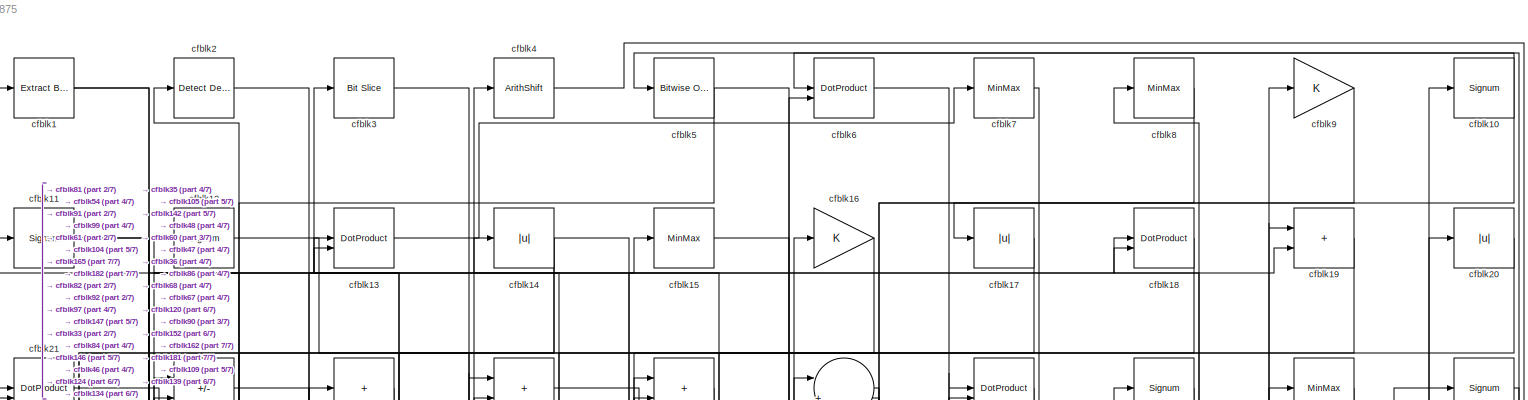
[diagram: root canvas - part 1/7, full width, top band]
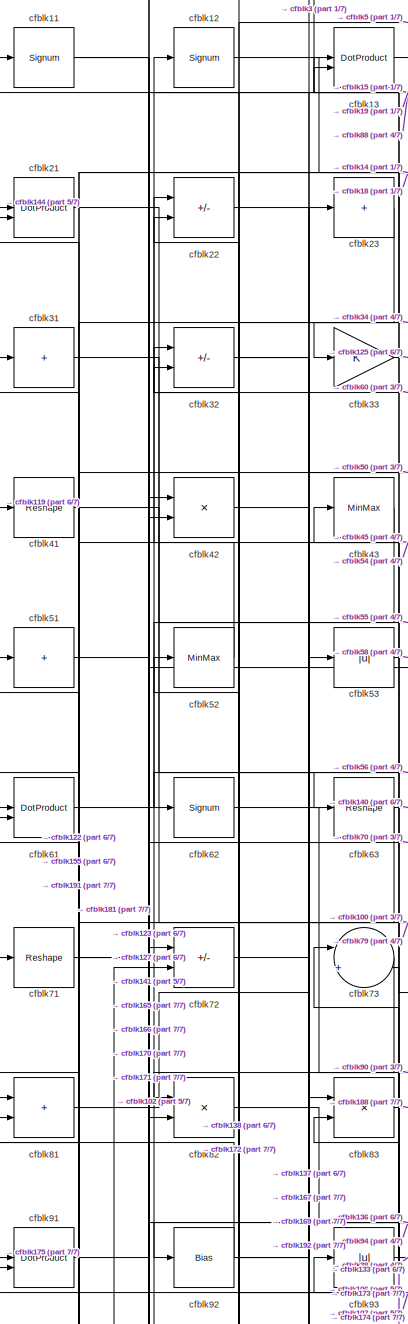
[diagram: root canvas - part 2/7, top left region]
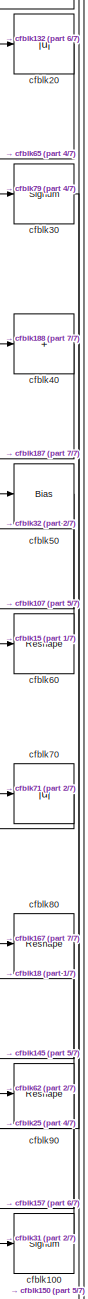
[diagram: root canvas - part 3/7, top right region]
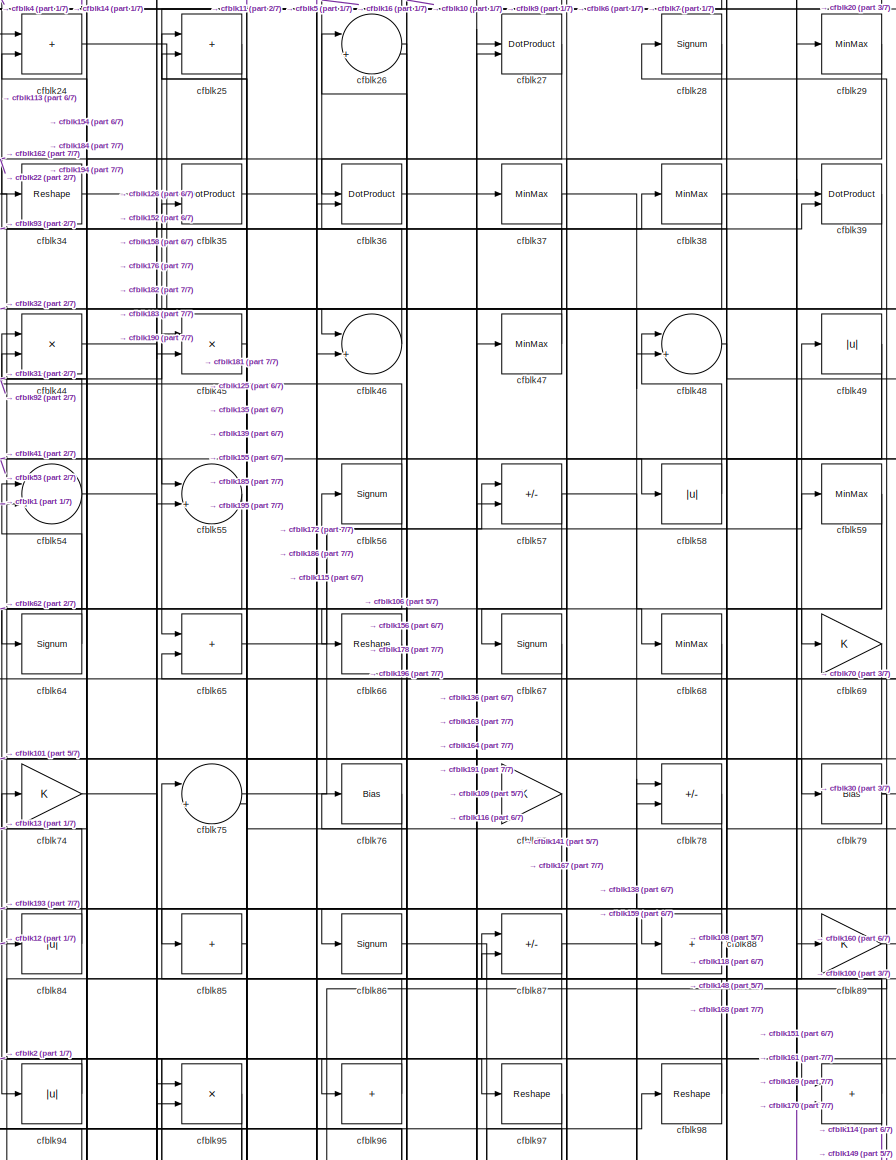
[diagram: root canvas - part 4/7, top center region]
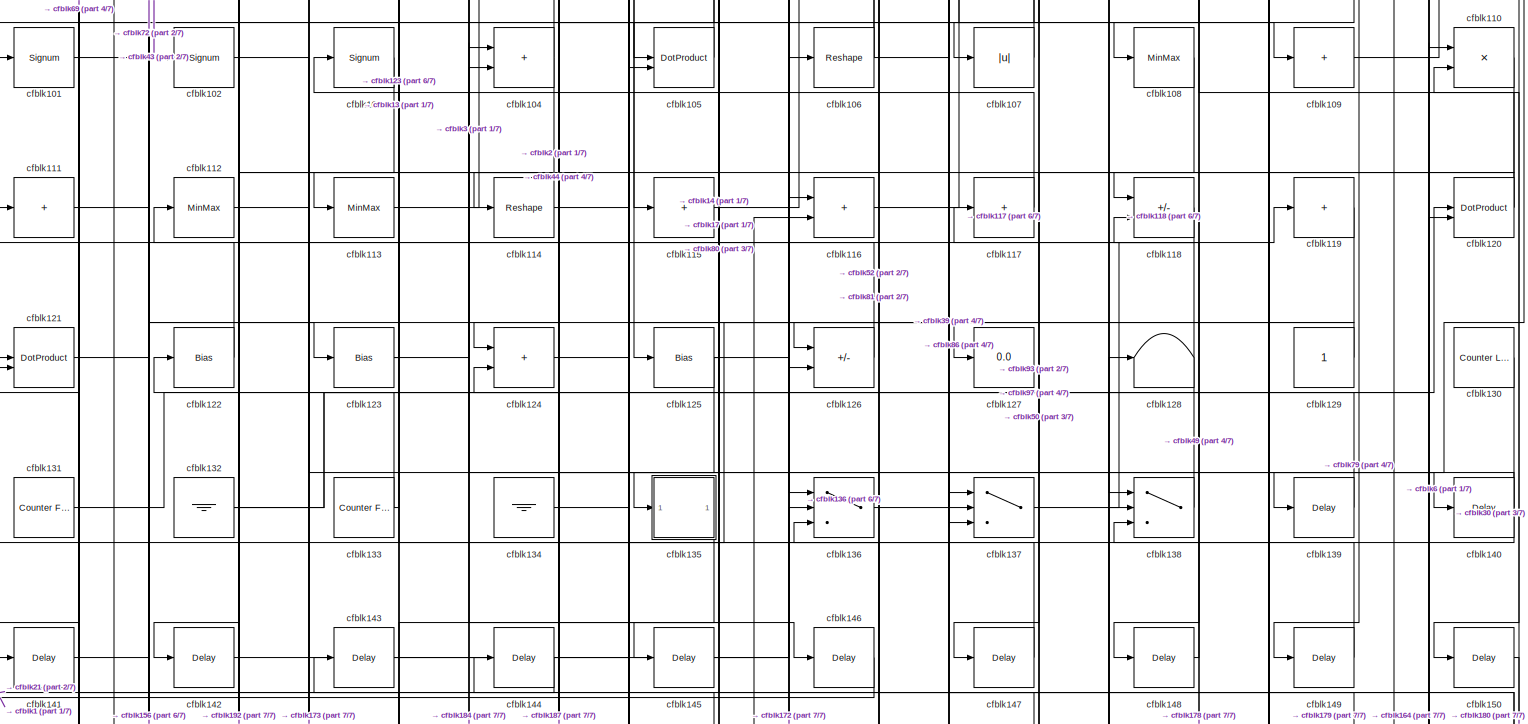
[diagram: root canvas - part 5/7, full width, middle band]
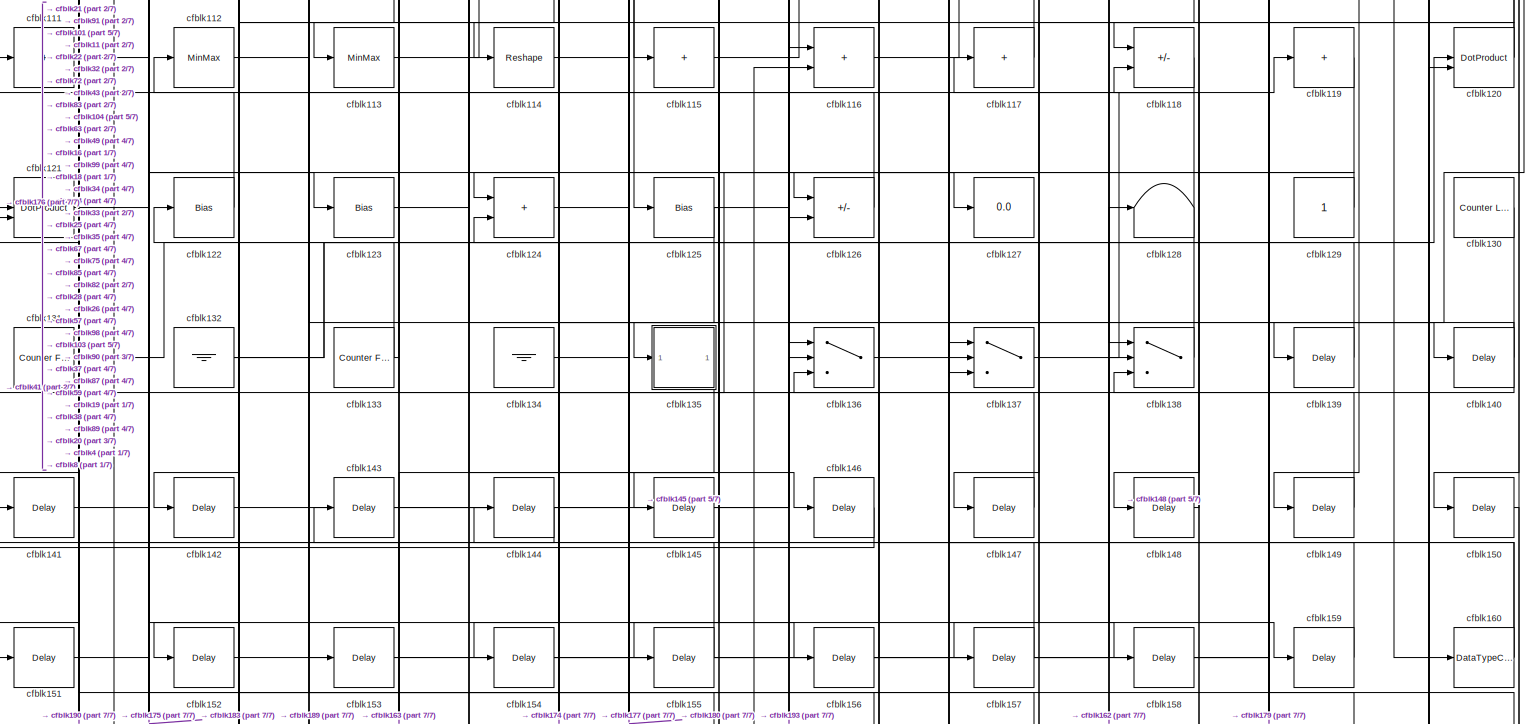
[diagram: root canvas - part 6/7, full width, bottom band]
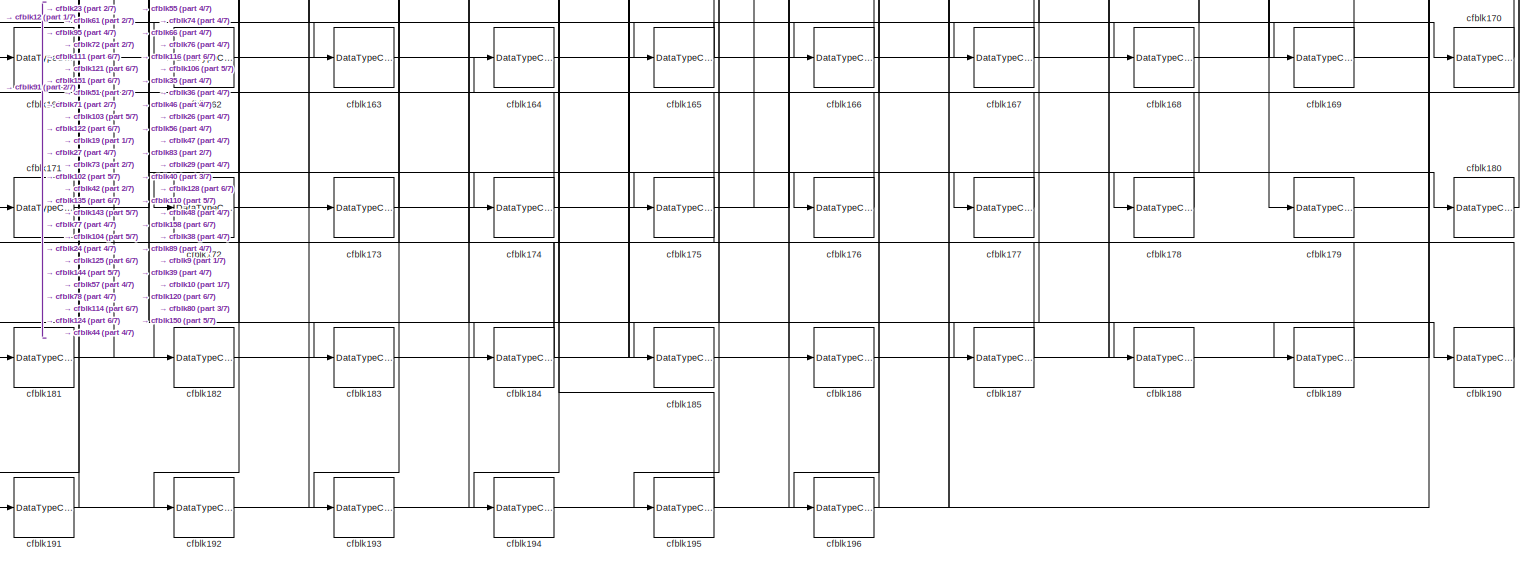
[diagram: root canvas - part 7/7, full width, bottom band]
MODEL slx_31e318410875
KIND model
CONFIG AbsTol = auto
CONFIG EnableMultiTasking = off
CONFIG FixedStep = auto
CONFIG MaxStep = auto
CONFIG MinStep = auto
CONFIG RelTol = 1e-3
CONFIG SampleTimeConstraint = Unconstrained
CONFIG SolverName = VariableStepAuto
CONFIG StartTime = 0.0
CONFIG StopTime = 10.0
BLOCK [Reference] cfblk1  REF=simulink/Logic and Bit
Operations/Extract Bits
  LibrarySourceBlock = hdlsllib/Logic and Bit\nOperations/Extract Bits
  SourceBlock = simulink/Logic and Bit\nOperations/Extract Bits
  SourceType = Extract Bits
BLOCK [Signum] cfblk10
BLOCK [Signum] cfblk100
BLOCK [Signum] cfblk101
BLOCK [Signum] cfblk102
BLOCK [Signum] cfblk103
BLOCK [Sum] cfblk104
  IconShape = rectangular
BLOCK [DotProduct] cfblk105
  OutDataTypeStr = Inherit: Inherit via internal rule
BLOCK [Reshape] cfblk106
BLOCK [Abs] cfblk107
  SaturateOnIntegerOverflow = off
BLOCK [MinMax] cfblk108
BLOCK [Sum] cfblk109
  IconShape = rectangular
  Inputs = +
BLOCK [Signum] cfblk11
BLOCK [Product] cfblk110
  Inputs = */
  RndMeth = Zero
  SaturateOnIntegerOverflow = on
BLOCK [Sum] cfblk111
  IconShape = rectangular
  Inputs = +
BLOCK [MinMax] cfblk112
BLOCK [MinMax] cfblk113
BLOCK [Reshape] cfblk114
BLOCK [Sum] cfblk115
  IconShape = rectangular
  Inputs = +
BLOCK [Sum] cfblk116
  IconShape = rectangular
BLOCK [Sum] cfblk117
  IconShape = rectangular
  Inputs = +
BLOCK [Sum] cfblk118
  IconShape = rectangular
  Inputs = +-
BLOCK [Sum] cfblk119
  IconShape = rectangular
  Inputs = +
BLOCK [Signum] cfblk12
BLOCK [DotProduct] cfblk120
  OutDataTypeStr = Inherit: Inherit via internal rule
BLOCK [DotProduct] cfblk121
  OutDataTypeStr = Inherit: Inherit via internal rule
BLOCK [Bias] cfblk122
  Bias = 0.0
  SaturateOnIntegerOverflow = off
BLOCK [Bias] cfblk123
  Bias = 0.0
  SaturateOnIntegerOverflow = off
BLOCK [Sum] cfblk124
  IconShape = rectangular
BLOCK [Bias] cfblk125
  Bias = 0.0
  SaturateOnIntegerOverflow = off
BLOCK [Sum] cfblk126
  IconShape = rectangular
  Inputs = +-
BLOCK [Display] cfblk127
  Decimation = 1
BLOCK [Terminator] cfblk128
BLOCK [Constant] cfblk129
  SampleTime = -1
BLOCK [DotProduct] cfblk13
  OutDataTypeStr = Inherit: Inherit via internal rule
BLOCK [Reference] cfblk130  REF=hdlsllib/Sources/Counter
Limited
  SourceBlock = hdlsllib/Sources/Counter\nLimited
  SourceType = Counter Limited
BLOCK [Reference] cfblk131  REF=hdlsllib/Sources/Counter
Free-Running
  SourceBlock = hdlsllib/Sources/Counter\nFree-Running
  SourceType = Counter Free-Running
BLOCK [Ground] cfblk132
BLOCK [Reference] cfblk133  REF=hdlsllib/Sources/Counter
Free-Running
  SourceBlock = hdlsllib/Sources/Counter\nFree-Running
  SourceType = Counter Free-Running
BLOCK [Ground] cfblk134
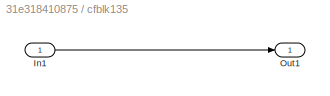
BLOCK [SubSystem] cfblk135
  LibrarySourceBlock = hdlsllib/Ports &\nSubsystems/Subsystem
BLOCK [Inport] cfblk135/In1
BLOCK [Outport] cfblk135/Out1
BLOCK [Switch] cfblk136
  InputSameDT = off
  SaturateOnIntegerOverflow = off
BLOCK [Switch] cfblk137
  InputSameDT = off
  SaturateOnIntegerOverflow = off
BLOCK [Switch] cfblk138
  InputSameDT = off
  SaturateOnIntegerOverflow = off
BLOCK [Delay] cfblk139
  InputPortMap = u0
  SampleTime = 1
BLOCK [Abs] cfblk14
  SaturateOnIntegerOverflow = off
BLOCK [Delay] cfblk140
  InputPortMap = u0
  SampleTime = 1
BLOCK [Delay] cfblk141
  InputPortMap = u0
  SampleTime = 1
BLOCK [Delay] cfblk142
  InputPortMap = u0
  SampleTime = 1
BLOCK [Delay] cfblk143
  InputPortMap = u0
  SampleTime = 1
BLOCK [Delay] cfblk144
  InputPortMap = u0
  SampleTime = 1
BLOCK [Delay] cfblk145
  InputPortMap = u0
  SampleTime = 1
BLOCK [Delay] cfblk146
  InputPortMap = u0
  SampleTime = 1
BLOCK [Delay] cfblk147
  InputPortMap = u0
  SampleTime = 1
BLOCK [Delay] cfblk148
  InputPortMap = u0
  SampleTime = 1
BLOCK [Delay] cfblk149
  InputPortMap = u0
  SampleTime = 1
BLOCK [MinMax] cfblk15
BLOCK [Delay] cfblk150
  InputPortMap = u0
  SampleTime = 1
BLOCK [Delay] cfblk151
  InputPortMap = u0
  SampleTime = 1
BLOCK [Delay] cfblk152
  InputPortMap = u0
  SampleTime = 1
BLOCK [Delay] cfblk153
  InputPortMap = u0
  SampleTime = 1
BLOCK [Delay] cfblk154
  InputPortMap = u0
  SampleTime = 1
BLOCK [Delay] cfblk155
  InputPortMap = u0
  SampleTime = 1
BLOCK [Delay] cfblk156
  InputPortMap = u0
  SampleTime = 1
BLOCK [Delay] cfblk157
  InputPortMap = u0
  SampleTime = 1
BLOCK [Delay] cfblk158
  InputPortMap = u0
  SampleTime = 1
BLOCK [Delay] cfblk159
  InputPortMap = u0
  SampleTime = 1
BLOCK [Gain] cfblk16
BLOCK [DataTypeConversion] cfblk160
  RndMeth = Floor
  SaturateOnIntegerOverflow = off
BLOCK [DataTypeConversion] cfblk161
  OutDataTypeStr = uint8
  RndMeth = Floor
  SaturateOnIntegerOverflow = off
BLOCK [DataTypeConversion] cfblk162
  RndMeth = Floor
  SaturateOnIntegerOverflow = off
BLOCK [DataTypeConversion] cfblk163
  OutDataTypeStr = uint8
  RndMeth = Floor
  SaturateOnIntegerOverflow = off
BLOCK [DataTypeConversion] cfblk164
  OutDataTypeStr = uint8
  RndMeth = Floor
  SaturateOnIntegerOverflow = off
BLOCK [DataTypeConversion] cfblk165
  RndMeth = Floor
  SaturateOnIntegerOverflow = off
BLOCK [DataTypeConversion] cfblk166
  OutDataTypeStr = uint8
  RndMeth = Floor
  SaturateOnIntegerOverflow = off
BLOCK [DataTypeConversion] cfblk167
  RndMeth = Floor
  SaturateOnIntegerOverflow = off
BLOCK [DataTypeConversion] cfblk168
  OutDataTypeStr = uint8
  RndMeth = Floor
  SaturateOnIntegerOverflow = off
BLOCK [DataTypeConversion] cfblk169
  OutDataTypeStr = uint8
  RndMeth = Floor
  SaturateOnIntegerOverflow = off
BLOCK [Abs] cfblk17
  SaturateOnIntegerOverflow = off
BLOCK [DataTypeConversion] cfblk170
  OutDataTypeStr = uint8
  RndMeth = Floor
  SaturateOnIntegerOverflow = off
BLOCK [DataTypeConversion] cfblk171
  OutDataTypeStr = uint8
  RndMeth = Floor
  SaturateOnIntegerOverflow = off
BLOCK [DataTypeConversion] cfblk172
  RndMeth = Floor
  SaturateOnIntegerOverflow = off
BLOCK [DataTypeConversion] cfblk173
  OutDataTypeStr = uint8
  RndMeth = Floor
  SaturateOnIntegerOverflow = off
BLOCK [DataTypeConversion] cfblk174
  OutDataTypeStr = uint8
  RndMeth = Floor
  SaturateOnIntegerOverflow = off
BLOCK [DataTypeConversion] cfblk175
  RndMeth = Floor
  SaturateOnIntegerOverflow = off
BLOCK [DataTypeConversion] cfblk176
  OutDataTypeStr = uint8
  RndMeth = Floor
  SaturateOnIntegerOverflow = off
BLOCK [DataTypeConversion] cfblk177
  OutDataTypeStr = uint8
  RndMeth = Floor
  SaturateOnIntegerOverflow = off
BLOCK [DataTypeConversion] cfblk178
  OutDataTypeStr = uint8
  RndMeth = Floor
  SaturateOnIntegerOverflow = off
BLOCK [DataTypeConversion] cfblk179
  OutDataTypeStr = uint8
  RndMeth = Floor
  SaturateOnIntegerOverflow = off
BLOCK [DotProduct] cfblk18
  OutDataTypeStr = Inherit: Inherit via internal rule
BLOCK [DataTypeConversion] cfblk180
  OutDataTypeStr = uint8
  RndMeth = Floor
  SaturateOnIntegerOverflow = off
BLOCK [DataTypeConversion] cfblk181
  RndMeth = Floor
  SaturateOnIntegerOverflow = off
BLOCK [DataTypeConversion] cfblk182
  OutDataTypeStr = uint8
  RndMeth = Floor
  SaturateOnIntegerOverflow = off
BLOCK [DataTypeConversion] cfblk183
  OutDataTypeStr = uint8
  RndMeth = Floor
  SaturateOnIntegerOverflow = off
BLOCK [DataTypeConversion] cfblk184
  RndMeth = Floor
  SaturateOnIntegerOverflow = off
BLOCK [DataTypeConversion] cfblk185
  OutDataTypeStr = uint8
  RndMeth = Floor
  SaturateOnIntegerOverflow = off
BLOCK [DataTypeConversion] cfblk186
  OutDataTypeStr = uint8
  RndMeth = Floor
  SaturateOnIntegerOverflow = off
BLOCK [DataTypeConversion] cfblk187
  OutDataTypeStr = uint8
  RndMeth = Floor
  SaturateOnIntegerOverflow = off
BLOCK [DataTypeConversion] cfblk188
  OutDataTypeStr = uint8
  RndMeth = Floor
  SaturateOnIntegerOverflow = off
BLOCK [DataTypeConversion] cfblk189
  OutDataTypeStr = uint8
  RndMeth = Floor
  SaturateOnIntegerOverflow = off
BLOCK [Sum] cfblk19
  IconShape = rectangular
BLOCK [DataTypeConversion] cfblk190
  OutDataTypeStr = uint8
  RndMeth = Floor
  SaturateOnIntegerOverflow = off
BLOCK [DataTypeConversion] cfblk191
  RndMeth = Floor
  SaturateOnIntegerOverflow = off
BLOCK [DataTypeConversion] cfblk192
  OutDataTypeStr = uint8
  RndMeth = Floor
  SaturateOnIntegerOverflow = off
BLOCK [DataTypeConversion] cfblk193
  RndMeth = Floor
  SaturateOnIntegerOverflow = off
BLOCK [DataTypeConversion] cfblk194
  OutDataTypeStr = uint8
  RndMeth = Floor
  SaturateOnIntegerOverflow = off
BLOCK [DataTypeConversion] cfblk195
  OutDataTypeStr = uint8
  RndMeth = Floor
  SaturateOnIntegerOverflow = off
BLOCK [DataTypeConversion] cfblk196
  OutDataTypeStr = uint8
  RndMeth = Floor
  SaturateOnIntegerOverflow = off
BLOCK [Reference] cfblk2  REF=simulink/Logic and Bit
Operations/Detect
Decrease
  LibrarySourceBlock = hdlsllib/Logic and Bit\nOperations/Detect\nDecrease
  SourceBlock = simulink/Logic and Bit\nOperations/Detect\nDecrease
  SourceType = Detect Decrease
BLOCK [Abs] cfblk20
  SaturateOnIntegerOverflow = off
BLOCK [DotProduct] cfblk21
  OutDataTypeStr = Inherit: Inherit via internal rule
BLOCK [Sum] cfblk22
  IconShape = rectangular
  Inputs = +-
BLOCK [Sum] cfblk23
  IconShape = rectangular
  Inputs = +
BLOCK [Sum] cfblk24
  IconShape = rectangular
BLOCK [Sum] cfblk25
  IconShape = rectangular
BLOCK [Sum] cfblk26
  Inputs = |++
BLOCK [DotProduct] cfblk27
  OutDataTypeStr = Inherit: Inherit via internal rule
BLOCK [Signum] cfblk28
BLOCK [MinMax] cfblk29
BLOCK [Reference] cfblk3  REF=hdlsllib/Logic and Bit
Operations/Bit Slice
  SourceBlock = hdlsllib/Logic and Bit\nOperations/Bit Slice
  SourceType = Bit Slice
BLOCK [Signum] cfblk30
BLOCK [Sum] cfblk31
  IconShape = rectangular
  Inputs = +
BLOCK [Sum] cfblk32
  IconShape = rectangular
  Inputs = +-
BLOCK [Gain] cfblk33
BLOCK [Reshape] cfblk34
BLOCK [DotProduct] cfblk35
  OutDataTypeStr = Inherit: Inherit via internal rule
BLOCK [DotProduct] cfblk36
  OutDataTypeStr = Inherit: Inherit via internal rule
BLOCK [MinMax] cfblk37
BLOCK [MinMax] cfblk38
BLOCK [DotProduct] cfblk39
  OutDataTypeStr = Inherit: Inherit via internal rule
BLOCK [ArithShift] cfblk4
  BitShiftNumber = 8
  InputPortMap = u0
BLOCK [Sum] cfblk40
  IconShape = rectangular
  Inputs = +
BLOCK [Reshape] cfblk41
BLOCK [Product] cfblk42
  Inputs = */
  RndMeth = Zero
  SaturateOnIntegerOverflow = on
BLOCK [MinMax] cfblk43
BLOCK [Product] cfblk44
  Inputs = */
  RndMeth = Zero
  SaturateOnIntegerOverflow = on
BLOCK [Product] cfblk45
  Inputs = */
  RndMeth = Zero
  SaturateOnIntegerOverflow = on
BLOCK [Sum] cfblk46
  Inputs = |++
BLOCK [MinMax] cfblk47
BLOCK [Sum] cfblk48
  Inputs = |++
BLOCK [Abs] cfblk49
  SaturateOnIntegerOverflow = off
BLOCK [Reference] cfblk5  REF=simulink/Logic and Bit
Operations/Bitwise
Operator
  LibrarySourceBlock = hdlsllib/Logic and Bit\nOperations/Bitwise\nOperator
  SourceBlock = simulink/Logic and Bit\nOperations/Bitwise\nOperator
  SourceType = Bitwise Operator
BLOCK [Bias] cfblk50
  Bias = 0.0
  SaturateOnIntegerOverflow = off
BLOCK [Sum] cfblk51
  IconShape = rectangular
  Inputs = +
BLOCK [MinMax] cfblk52
BLOCK [Abs] cfblk53
  SaturateOnIntegerOverflow = off
BLOCK [Sum] cfblk54
  Inputs = |++
BLOCK [Sum] cfblk55
  Inputs = |++
BLOCK [Signum] cfblk56
BLOCK [Sum] cfblk57
  IconShape = rectangular
  Inputs = +-
BLOCK [Abs] cfblk58
  SaturateOnIntegerOverflow = off
BLOCK [MinMax] cfblk59
BLOCK [DotProduct] cfblk6
  OutDataTypeStr = Inherit: Inherit via internal rule
BLOCK [Reshape] cfblk60
BLOCK [DotProduct] cfblk61
  OutDataTypeStr = Inherit: Inherit via internal rule
BLOCK [Signum] cfblk62
BLOCK [Reshape] cfblk63
BLOCK [Signum] cfblk64
BLOCK [Sum] cfblk65
  IconShape = rectangular
BLOCK [Reshape] cfblk66
BLOCK [Signum] cfblk67
BLOCK [MinMax] cfblk68
BLOCK [Gain] cfblk69
BLOCK [MinMax] cfblk7
BLOCK [Abs] cfblk70
  SaturateOnIntegerOverflow = off
BLOCK [Reshape] cfblk71
BLOCK [Sum] cfblk72
  IconShape = rectangular
  Inputs = +-
BLOCK [Sum] cfblk73
  Inputs = |++
BLOCK [Gain] cfblk74
BLOCK [Sum] cfblk75
  Inputs = |++
BLOCK [Bias] cfblk76
  Bias = 0.0
  SaturateOnIntegerOverflow = off
BLOCK [Gain] cfblk77
BLOCK [Sum] cfblk78
  IconShape = rectangular
  Inputs = +-
BLOCK [Bias] cfblk79
  Bias = 0.0
  SaturateOnIntegerOverflow = off
BLOCK [MinMax] cfblk8
BLOCK [Reshape] cfblk80
BLOCK [Sum] cfblk81
  IconShape = rectangular
BLOCK [Product] cfblk82
  Inputs = */
  RndMeth = Zero
  SaturateOnIntegerOverflow = on
BLOCK [Product] cfblk83
  Inputs = */
  RndMeth = Zero
  SaturateOnIntegerOverflow = on
BLOCK [Abs] cfblk84
  SaturateOnIntegerOverflow = off
BLOCK [Sum] cfblk85
  IconShape = rectangular
  Inputs = +
BLOCK [Signum] cfblk86
BLOCK [Sum] cfblk87
  IconShape = rectangular
  Inputs = +-
BLOCK [Sum] cfblk88
  IconShape = rectangular
  Inputs = +
BLOCK [Gain] cfblk89
BLOCK [Gain] cfblk9
BLOCK [Reshape] cfblk90
BLOCK [DotProduct] cfblk91
  OutDataTypeStr = Inherit: Inherit via internal rule
BLOCK [Bias] cfblk92
  Bias = 0.0
  SaturateOnIntegerOverflow = off
BLOCK [Abs] cfblk93
  SaturateOnIntegerOverflow = off
BLOCK [Abs] cfblk94
  SaturateOnIntegerOverflow = off
BLOCK [Product] cfblk95
  Inputs = */
  RndMeth = Zero
  SaturateOnIntegerOverflow = on
BLOCK [Sum] cfblk96
  IconShape = rectangular
  Inputs = +
BLOCK [Reshape] cfblk97
BLOCK [Reshape] cfblk98
BLOCK [Sum] cfblk99
  IconShape = rectangular
LINE cfblk100:1 -> cfblk25:2
LINE cfblk101:1 -> cfblk156:1
LINE cfblk102:1 -> cfblk173:1
LINE cfblk103:1 -> cfblk192:1
NET cfblk104:1 -> cfblk142:1, cfblk2:1
LINE cfblk105:1 -> cfblk14:1
NET cfblk106:1 -> cfblk39:2, cfblk52:1, cfblk81:2
LINE cfblk107:1 -> cfblk93:1
LINE cfblk108:1 -> cfblk147:1
LINE cfblk109:1 -> cfblk6:1
NET cfblk10:1 -> cfblk36:1, cfblk5:1
LINE cfblk110:1 -> cfblk178:1
LINE cfblk111:1 -> cfblk189:1
LINE cfblk112:1 -> cfblk153:1
LINE cfblk113:1 -> cfblk49:1
LINE cfblk114:1 -> cfblk177:1
LINE cfblk115:1 -> cfblk28:1
LINE cfblk116:1 -> cfblk98:1
LINE cfblk117:1 -> cfblk103:1
LINE cfblk118:1 -> cfblk117:1
LINE cfblk119:1 -> cfblk41:1
NET cfblk11:1 -> cfblk123:1, cfblk127:1
NET cfblk120:1 -> cfblk113:1, cfblk8:1
LINE cfblk121:1 -> cfblk175:1
LINE cfblk122:1 -> cfblk21:2
NET cfblk123:1 -> cfblk104:2, cfblk83:2
LINE cfblk124:1 -> cfblk180:1
NET cfblk125:1 -> cfblk174:1, cfblk25:1, cfblk87:1
LINE cfblk126:1 -> cfblk112:1
LINE cfblk129:1 -> cfblk126:1
LINE cfblk12:1 -> cfblk84:1
LINE cfblk130:1 -> cfblk138:3
LINE cfblk131:1 -> cfblk120:1
NET cfblk132:1 -> cfblk116:1, cfblk20:1
NET cfblk133:1 -> cfblk22:2, cfblk43:1
LINE cfblk134:1 -> cfblk18:1
LINE cfblk135/In1:1 -> cfblk135/Out1:1
LINE cfblk135:1 -> cfblk163:1
LINE cfblk136:1 -> cfblk57:2
LINE cfblk137:1 -> cfblk119:1
LINE cfblk138:1 -> cfblk32:2
LINE cfblk139:1 -> cfblk75:2
LINE cfblk13:1 -> cfblk7:1
LINE cfblk140:1 -> cfblk137:2
LINE cfblk141:1 -> cfblk72:1
LINE cfblk142:1 -> cfblk6:2
LINE cfblk143:1 -> cfblk105:2
LINE cfblk144:1 -> cfblk21:1
LINE cfblk145:1 -> cfblk136:2
LINE cfblk146:1 -> cfblk1:1
LINE cfblk147:1 -> cfblk13:2
LINE cfblk148:1 -> cfblk118:2
LINE cfblk149:1 -> cfblk44:2
NET cfblk14:1 -> cfblk35:1, cfblk61:1, cfblk81:1
LINE cfblk150:1 -> cfblk164:1
LINE cfblk151:1 -> cfblk183:1
LINE cfblk152:1 -> cfblk19:1
LINE cfblk153:1 -> cfblk138:2
LINE cfblk154:1 -> cfblk99:2
LINE cfblk155:1 -> cfblk91:2
LINE cfblk156:1 -> cfblk26:1
LINE cfblk157:1 -> cfblk137:1
LINE cfblk158:1 -> cfblk179:1
LINE cfblk159:1 -> cfblk124:2
LINE cfblk15:1 -> cfblk60:1
NET cfblk160:1 -> cfblk136:3, cfblk35:2
LINE cfblk161:1 -> cfblk89:1
NET cfblk162:1 -> cfblk128:1, cfblk9:1
LINE cfblk163:1 -> cfblk27:1
LINE cfblk164:1 -> cfblk27:2
NET cfblk165:1 -> cfblk12:1, cfblk161:1
LINE cfblk166:1 -> cfblk51:1
NET cfblk167:1 -> cfblk80:1, cfblk83:1
LINE cfblk168:1 -> cfblk29:1
LINE cfblk169:1 -> cfblk39:1
LINE cfblk16:1 -> cfblk124:1
LINE cfblk170:1 -> cfblk42:1
LINE cfblk171:1 -> cfblk42:2
NET cfblk172:1 -> cfblk106:1, cfblk46:2
LINE cfblk173:1 -> cfblk73:1
LINE cfblk174:1 -> cfblk73:2
NET cfblk175:1 -> cfblk116:2, cfblk171:1, cfblk91:1
LINE cfblk176:1 -> cfblk121:1
LINE cfblk177:1 -> cfblk121:2
LINE cfblk178:1 -> cfblk56:1
LINE cfblk179:1 -> cfblk110:1
LINE cfblk17:1 -> cfblk105:1
LINE cfblk180:1 -> cfblk110:2
NET cfblk181:1 -> cfblk10:1, cfblk55:2, cfblk72:2
LINE cfblk182:1 -> cfblk95:1
LINE cfblk183:1 -> cfblk95:2
NET cfblk184:1 -> cfblk104:1, cfblk143:1
LINE cfblk185:1 -> cfblk78:1
LINE cfblk186:1 -> cfblk78:2
LINE cfblk187:1 -> cfblk144:1
LINE cfblk188:1 -> cfblk40:1
LINE cfblk189:1 -> cfblk122:1
LINE cfblk18:1 -> cfblk33:1
LINE cfblk190:1 -> cfblk111:1
NET cfblk191:1 -> cfblk24:1, cfblk47:1, cfblk61:2
LINE cfblk192:1 -> cfblk23:1
NET cfblk193:1 -> cfblk120:2, cfblk36:2
LINE cfblk194:1 -> cfblk77:1
LINE cfblk195:1 -> cfblk74:1
LINE cfblk196:1 -> cfblk76:1
LINE cfblk19:1 -> cfblk182:1
NET cfblk1:1 -> cfblk54:2, cfblk99:1
LINE cfblk20:1 -> cfblk65:1
LINE cfblk21:1 -> cfblk63:1
LINE cfblk22:1 -> cfblk34:1
LINE cfblk23:1 -> cfblk191:1
LINE cfblk24:1 -> cfblk46:1
LINE cfblk25:1 -> cfblk154:1
LINE cfblk26:1 -> cfblk196:1
LINE cfblk27:1 -> cfblk162:1
LINE cfblk28:1 -> cfblk66:1
LINE cfblk29:1 -> cfblk167:1
LINE cfblk2:1 -> cfblk97:1
LINE cfblk30:1 -> cfblk150:1
LINE cfblk31:1 -> cfblk100:1
NET cfblk32:1 -> cfblk50:1, cfblk79:1
LINE cfblk33:1 -> cfblk125:1
LINE cfblk34:1 -> cfblk158:1
LINE cfblk35:1 -> cfblk186:1
LINE cfblk36:1 -> cfblk37:1
NET cfblk37:1 -> cfblk138:1, cfblk45:2
NET cfblk38:1 -> cfblk151:1, cfblk170:1
LINE cfblk39:1 -> cfblk64:1
LINE cfblk3:1 -> cfblk146:1
LINE cfblk40:1 -> cfblk187:1
LINE cfblk41:1 -> cfblk55:1
LINE cfblk42:1 -> cfblk169:1
LINE cfblk43:1 -> cfblk102:1
LINE cfblk44:1 -> cfblk190:1
LINE cfblk45:1 -> cfblk85:1
LINE cfblk46:1 -> cfblk4:1
LINE cfblk47:1 -> cfblk16:1
LINE cfblk48:1 -> cfblk168:1
NET cfblk49:1 -> cfblk108:1, cfblk148:1
LINE cfblk4:1 -> cfblk139:1
LINE cfblk50:1 -> cfblk107:1
LINE cfblk51:1 -> cfblk165:1
LINE cfblk52:1 -> cfblk22:1
LINE cfblk53:1 -> cfblk58:1
NET cfblk54:1 -> cfblk126:2, cfblk152:1, cfblk31:1
LINE cfblk55:1 -> cfblk94:1
NET cfblk56:1 -> cfblk44:1, cfblk62:1
NET cfblk57:1 -> cfblk194:1, cfblk69:1
LINE cfblk58:1 -> cfblk48:1
NET cfblk59:1 -> cfblk118:1, cfblk88:1
NET cfblk5:1 -> cfblk48:2, cfblk82:1
LINE cfblk60:1 -> cfblk32:1
LINE cfblk61:1 -> cfblk3:1
LINE cfblk62:1 -> cfblk90:1
NET cfblk63:1 -> cfblk140:1, cfblk82:2
LINE cfblk64:1 -> cfblk54:1
LINE cfblk65:1 -> cfblk57:1
LINE cfblk66:1 -> cfblk185:1
LINE cfblk67:1 -> cfblk135:1
LINE cfblk68:1 -> cfblk96:1
LINE cfblk69:1 -> cfblk101:1
LINE cfblk6:1 -> cfblk68:1
LINE cfblk70:1 -> cfblk65:2
NET cfblk71:1 -> cfblk166:1, cfblk70:1
LINE cfblk72:1 -> cfblk137:3
LINE cfblk73:1 -> cfblk172:1
LINE cfblk74:1 -> cfblk176:1
LINE cfblk75:1 -> cfblk59:1
LINE cfblk76:1 -> cfblk195:1
LINE cfblk77:1 -> cfblk193:1
LINE cfblk78:1 -> cfblk184:1
NET cfblk79:1 -> cfblk149:1, cfblk30:1
LINE cfblk7:1 -> cfblk67:1
LINE cfblk80:1 -> cfblk145:1
LINE cfblk81:1 -> cfblk53:1
LINE cfblk82:1 -> cfblk136:1
LINE cfblk83:1 -> cfblk188:1
LINE cfblk84:1 -> cfblk13:1
LINE cfblk85:1 -> cfblk155:1
LINE cfblk86:1 -> cfblk109:1
NET cfblk87:1 -> cfblk115:1, cfblk159:1
LINE cfblk88:1 -> cfblk11:1
LINE cfblk89:1 -> cfblk160:1
LINE cfblk8:1 -> cfblk17:1
NET cfblk90:1 -> cfblk157:1, cfblk18:2
LINE cfblk91:1 -> cfblk19:2
NET cfblk92:1 -> cfblk15:1, cfblk45:1, cfblk71:1
LINE cfblk93:1 -> cfblk38:1
LINE cfblk94:1 -> cfblk92:1
LINE cfblk95:1 -> cfblk181:1
LINE cfblk96:1 -> cfblk75:1
LINE cfblk97:1 -> cfblk141:1
LINE cfblk98:1 -> cfblk24:2
NET cfblk99:1 -> cfblk114:1, cfblk26:2, cfblk87:2
LINE cfblk9:1 -> cfblk86:1
note: NET lines group one-source signal fan-out (src -> all destinations, sorted); 1:1 wires keep LINE
